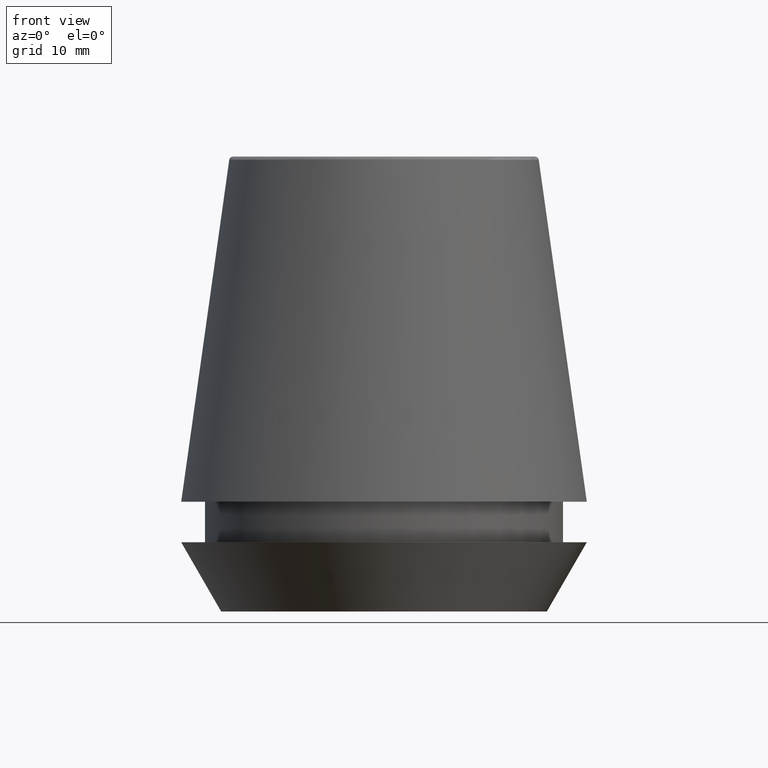
[diagram: clean part render]
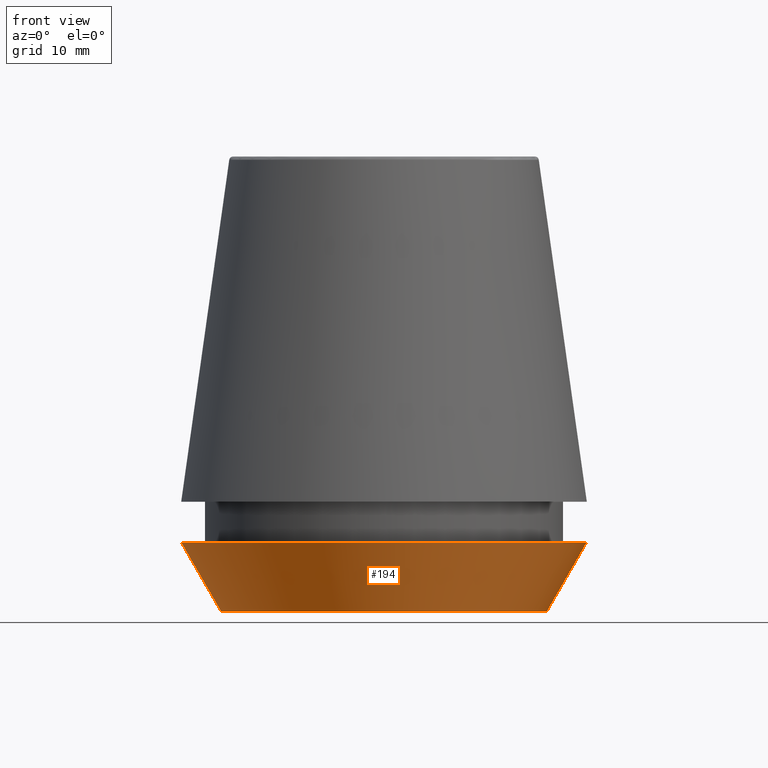
[diagram: same view with one face highlighted and labeled with its STEP entity id]
A machine part, front view. The second image highlights one B-rep face of the part: STEP entity #194.
In plain terms, the highlighted conical surface has half-angle 30 deg.
Its self-contained STEP definition (entity closure, byte-faithful):
#6 = CIRCLE ( 'NONE', #50, 20.50000000000000000 ) ;
#15 = EDGE_CURVE ( 'NONE', #26, #80, #262, .T. ) ;
#18 = VERTEX_POINT ( 'NONE', #240 ) ;
#22 = CARTESIAN_POINT ( 'NONE',  ( -16.45854811567268100, 2.263058382549599700E-015, 0.0000000000000000000 ) ) ;
#26 = VERTEX_POINT ( 'NONE', #22 ) ;
#50 = AXIS2_PLACEMENT_3D ( 'NONE', #252, #92, #291 ) ;
#56 = EDGE_CURVE ( 'NONE', #80, #18, #6, .T. ) ;
#60 = DIRECTION ( 'NONE',  ( 0.4999999999999941700, 0.0000000000000000000, 0.8660254037844420400 ) ) ;
#79 = CARTESIAN_POINT ( 'NONE',  ( 0.0000000000000000000, 0.0000000000000000000, 0.0000000000000000000 ) ) ;
#80 = VERTEX_POINT ( 'NONE', #375 ) ;
#82 = ORIENTED_EDGE ( 'NONE', *, *, #102, .T. ) ;
#84 = CARTESIAN_POINT ( 'NONE',  ( 0.0000000000000000000, 0.0000000000000000000, 0.0000000000000000000 ) ) ;
#90 = ORIENTED_EDGE ( 'NONE', *, *, #329, .T. ) ;
#92 = DIRECTION ( 'NONE',  ( -0.0000000000000000000, -0.0000000000000000000, 1.000000000000000000 ) ) ;
#102 = EDGE_CURVE ( 'NONE', #138, #18, #256, .T. ) ;
#110 = DIRECTION ( 'NONE',  ( -0.0000000000000000000, -0.0000000000000000000, 1.000000000000000000 ) ) ;
#138 = VERTEX_POINT ( 'NONE', #249 ) ;
#162 = VECTOR ( 'NONE', #305, 1000.000000000000000 ) ;
#194 = ADVANCED_FACE ( 'NONE', ( #290 ), #300, .T. ) ;
#196 = VECTOR ( 'NONE', #60, 1000.000000000000000 ) ;
#199 = ORIENTED_EDGE ( 'NONE', *, *, #56, .F. ) ;
#214 = EDGE_LOOP ( 'NONE', ( #219, #90, #82, #199 ) ) ;
#219 = ORIENTED_EDGE ( 'NONE', *, *, #15, .F. ) ;
#240 = CARTESIAN_POINT ( 'NONE',  ( 20.50000000000000000, 0.0000000000000000000, 7.000000000000006200 ) ) ;
#245 = AXIS2_PLACEMENT_3D ( 'NONE', #84, #251, #264 ) ;
#247 = AXIS2_PLACEMENT_3D ( 'NONE', #79, #110, #274 ) ;
#249 = CARTESIAN_POINT ( 'NONE',  ( 16.45854811567268100, 0.0000000000000000000, 0.0000000000000000000 ) ) ;
#251 = DIRECTION ( 'NONE',  ( -0.0000000000000000000, -0.0000000000000000000, 1.000000000000000000 ) ) ;
#252 = CARTESIAN_POINT ( 'NONE',  ( 0.0000000000000000000, 0.0000000000000000000, 7.000000000000006200 ) ) ;
#256 = LINE ( 'NONE', #289, #196 ) ;
#262 = LINE ( 'NONE', #308, #162 ) ;
#264 = DIRECTION ( 'NONE',  ( 1.000000000000000000, 0.0000000000000000000, 0.0000000000000000000 ) ) ;
#274 = DIRECTION ( 'NONE',  ( 1.000000000000000000, 0.0000000000000000000, 0.0000000000000000000 ) ) ;
#289 = CARTESIAN_POINT ( 'NONE',  ( 16.45854811567268100, 0.0000000000000000000, 0.0000000000000000000 ) ) ;
#290 = FACE_OUTER_BOUND ( 'NONE', #214, .T. ) ;
#291 = DIRECTION ( 'NONE',  ( 1.000000000000000000, 0.0000000000000000000, 0.0000000000000000000 ) ) ;
#300 = CONICAL_SURFACE ( 'NONE', #245, 16.45854811567268100, 0.5235987755982921500 ) ;
#305 = DIRECTION ( 'NONE',  ( -0.4999999999999941700, 6.123233995736694500E-017, 0.8660254037844420400 ) ) ;
#308 = CARTESIAN_POINT ( 'NONE',  ( -16.45854811567268100, 2.015590826847124800E-015, 0.0000000000000000000 ) ) ;
#318 = CIRCLE ( 'NONE', #247, 16.45854811567268100 ) ;
#329 = EDGE_CURVE ( 'NONE', #26, #138, #318, .T. ) ;
#375 = CARTESIAN_POINT ( 'NONE',  ( -20.50000000000000000, 2.510525938252074100E-015, 7.000000000000006200 ) ) ;